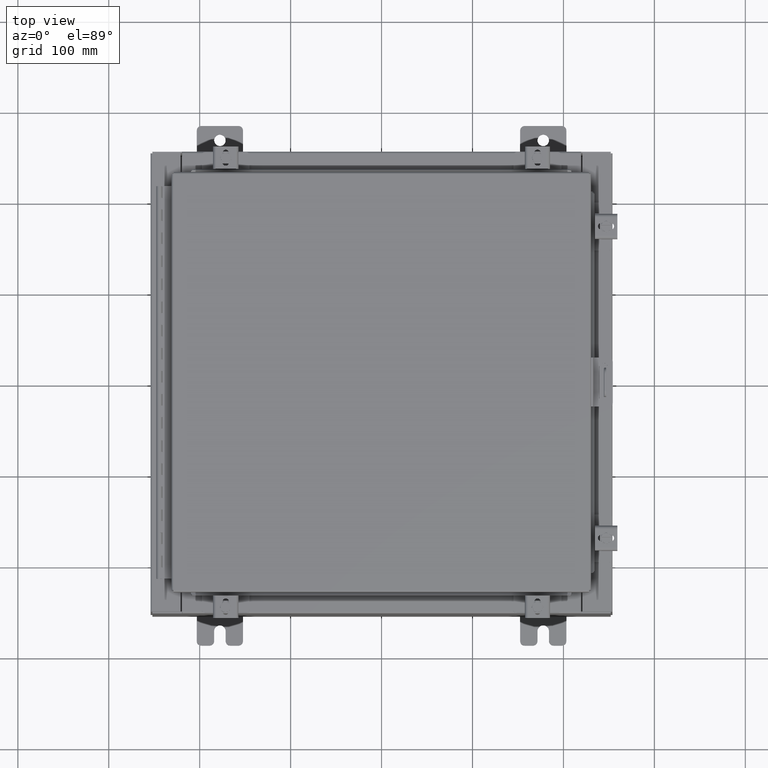
[diagram: clean part render]
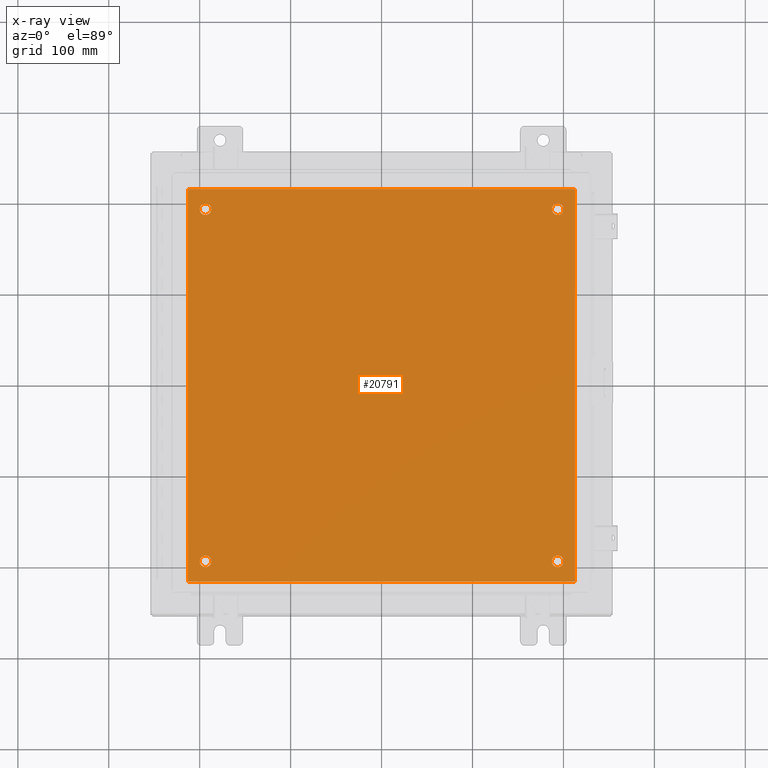
[diagram: x-ray — body ghosted, one internal face saturated and labeled with its STEP entity id]
A machine part, top view, then the same camera in x-ray: the body is ghosted and one INTERNAL B-rep face — a face not visible from any outside direction — is saturated and labeled: STEP entity #20791.
In plain terms, the highlighted planar face has unit normal (0, 0, -1).
Its self-contained STEP definition (entity closure, byte-faithful):
#119 = DIRECTION ( 'NONE',  ( -0.0000000000000000000, -0.0000000000000000000, 1.000000000000000000 ) ) ;
#193 = EDGE_CURVE ( 'NONE', #20568, #8014, #27092, .T. ) ;
#464 = EDGE_CURVE ( 'NONE', #7230, #7078, #10050, .T. ) ;
#630 = CARTESIAN_POINT ( 'NONE',  ( 8.383000000000000900, -8.499999999999998200, -0.1039999999999999800 ) ) ;
#1023 = ORIENTED_EDGE ( 'NONE', *, *, #16695, .F. ) ;
#1101 = CARTESIAN_POINT ( 'NONE',  ( 8.383000000000000900, -8.499999999999998200, -0.1039999999999998100 ) ) ;
#1144 = FACE_BOUND ( 'NONE', #7761, .T. ) ;
#1558 = CARTESIAN_POINT ( 'NONE',  ( -7.375000000000001800, -7.625000000000000900, -0.1039999999999999800 ) ) ;
#1650 = AXIS2_PLACEMENT_3D ( 'NONE', #16886, #3266, #19206 ) ;
#1822 = ORIENTED_EDGE ( 'NONE', *, *, #23185, .T. ) ;
#2120 = VECTOR ( 'NONE', #12971, 39.37007874015748100 ) ;
#2143 = CARTESIAN_POINT ( 'NONE',  ( 7.375000000000003600, 7.625000000000000900, -0.1039999999999999800 ) ) ;
#2950 = VERTEX_POINT ( 'NONE', #6290 ) ;
#3266 = DIRECTION ( 'NONE',  ( -0.0000000000000000000, -0.0000000000000000000, 1.000000000000000000 ) ) ;
#3299 = EDGE_LOOP ( 'NONE', ( #23025, #7953 ) ) ;
#3464 = LINE ( 'NONE', #15397, #8816 ) ;
#3525 = CIRCLE ( 'NONE', #10352, 0.2499999999999998100 ) ;
#4375 = DIRECTION ( 'NONE',  ( -0.0000000000000000000, -0.0000000000000000000, 1.000000000000000000 ) ) ;
#4644 = VERTEX_POINT ( 'NONE', #12057 ) ;
#4817 = CIRCLE ( 'NONE', #1650, 0.2499999999999998100 ) ;
#5528 = CIRCLE ( 'NONE', #29311, 0.2499999999999998100 ) ;
#5798 = FACE_BOUND ( 'NONE', #26513, .T. ) ;
#6290 = CARTESIAN_POINT ( 'NONE',  ( -8.382999999999999100, -8.499999999999998200, -0.1039999999999998100 ) ) ;
#6351 = CARTESIAN_POINT ( 'NONE',  ( -8.382999999999999100, 8.500000000000000000, -0.1039999999999998100 ) ) ;
#7066 = EDGE_CURVE ( 'NONE', #4644, #22737, #4817, .T. ) ;
#7078 = VERTEX_POINT ( 'NONE', #21471 ) ;
#7230 = VERTEX_POINT ( 'NONE', #1558 ) ;
#7517 = CARTESIAN_POINT ( 'NONE',  ( 7.875000000000000900, 7.625000000000000900, -0.1039999999999999800 ) ) ;
#7719 = VERTEX_POINT ( 'NONE', #6351 ) ;
#7761 = EDGE_LOOP ( 'NONE', ( #25584, #1822 ) ) ;
#7931 = DIRECTION ( 'NONE',  ( -0.0000000000000000000, -0.0000000000000000000, 1.000000000000000000 ) ) ;
#7953 = ORIENTED_EDGE ( 'NONE', *, *, #10026, .T. ) ;
#8014 = VERTEX_POINT ( 'NONE', #9719 ) ;
#8042 = AXIS2_PLACEMENT_3D ( 'NONE', #8465, #24363, #10742 ) ;
#8265 = EDGE_CURVE ( 'NONE', #2950, #20568, #19351, .T. ) ;
#8284 = DIRECTION ( 'NONE',  ( -1.000000000000000000, 0.0000000000000000000, -0.0000000000000000000 ) ) ;
#8295 = DIRECTION ( 'NONE',  ( 1.000000000000000000, 0.0000000000000000000, 0.0000000000000000000 ) ) ;
#8465 = CARTESIAN_POINT ( 'NONE',  ( 7.625000000000001800, 7.625000000000000900, -0.1039999999999999800 ) ) ;
#8816 = VECTOR ( 'NONE', #12988, 39.37007874015748100 ) ;
#8941 = EDGE_CURVE ( 'NONE', #20598, #16825, #21074, .T. ) ;
#8984 = EDGE_LOOP ( 'NONE', ( #14703, #21207 ) ) ;
#9465 = ORIENTED_EDGE ( 'NONE', *, *, #8265, .F. ) ;
#9645 = ORIENTED_EDGE ( 'NONE', *, *, #23393, .T. ) ;
#9652 = CARTESIAN_POINT ( 'NONE',  ( -7.625000000000001800, 7.625000000000000900, -0.1039999999999999800 ) ) ;
#9719 = CARTESIAN_POINT ( 'NONE',  ( 8.383000000000000900, 8.500000000000000000, -0.1039999999999999800 ) ) ;
#10026 = EDGE_CURVE ( 'NONE', #7078, #7230, #3525, .T. ) ;
#10050 = CIRCLE ( 'NONE', #21917, 0.2499999999999998100 ) ;
#10305 = CARTESIAN_POINT ( 'NONE',  ( -7.625000000000001800, -7.625000000000000900, -0.1039999999999999800 ) ) ;
#10352 = AXIS2_PLACEMENT_3D ( 'NONE', #10305, #26169, #12583 ) ;
#10383 = VERTEX_POINT ( 'NONE', #29338 ) ;
#10466 = DIRECTION ( 'NONE',  ( -0.0000000000000000000, -0.0000000000000000000, 1.000000000000000000 ) ) ;
#10685 = CARTESIAN_POINT ( 'NONE',  ( -8.500000000000000000, 8.500000000000000000, -0.1039999999999999800 ) ) ;
#10737 = AXIS2_PLACEMENT_3D ( 'NONE', #24083, #10466, #26341 ) ;
#10742 = DIRECTION ( 'NONE',  ( -1.000000000000000000, 0.0000000000000000000, 0.0000000000000000000 ) ) ;
#10973 = EDGE_CURVE ( 'NONE', #7719, #2950, #3464, .T. ) ;
#11922 = DIRECTION ( 'NONE',  ( -1.000000000000000000, 0.0000000000000000000, 0.0000000000000000000 ) ) ;
#12057 = CARTESIAN_POINT ( 'NONE',  ( -7.875000000000001800, 7.625000000000000900, -0.1039999999999999800 ) ) ;
#12583 = DIRECTION ( 'NONE',  ( -1.000000000000000000, 0.0000000000000000000, 0.0000000000000000000 ) ) ;
#12782 = CIRCLE ( 'NONE', #10737, 0.2499999999999987000 ) ;
#12971 = DIRECTION ( 'NONE',  ( -1.000000000000000000, -0.0000000000000000000, -0.0000000000000000000 ) ) ;
#12988 = DIRECTION ( 'NONE',  ( 0.0000000000000000000, -1.000000000000000000, 0.0000000000000000000 ) ) ;
#13766 = CARTESIAN_POINT ( 'NONE',  ( 7.625000000000001800, 7.625000000000000900, -0.1039999999999999800 ) ) ;
#14060 = CIRCLE ( 'NONE', #21128, 0.2499999999999987000 ) ;
#14637 = CARTESIAN_POINT ( 'NONE',  ( 7.375000000000003600, -7.625000000000000900, -0.1039999999999999800 ) ) ;
#14703 = ORIENTED_EDGE ( 'NONE', *, *, #26711, .T. ) ;
#14938 = LINE ( 'NONE', #10685, #2120 ) ;
#15052 = VECTOR ( 'NONE', #26042, 39.37007874015748100 ) ;
#15397 = CARTESIAN_POINT ( 'NONE',  ( -8.382999999999999100, 8.500000000000000000, -0.1039999999999998100 ) ) ;
#16008 = ORIENTED_EDGE ( 'NONE', *, *, #193, .F. ) ;
#16067 = DIRECTION ( 'NONE',  ( -1.000000000000000000, 0.0000000000000000000, 0.0000000000000000000 ) ) ;
#16695 = EDGE_CURVE ( 'NONE', #8014, #7719, #14938, .T. ) ;
#16825 = VERTEX_POINT ( 'NONE', #2143 ) ;
#16886 = CARTESIAN_POINT ( 'NONE',  ( -7.625000000000001800, 7.625000000000000900, -0.1039999999999999800 ) ) ;
#17349 = PLANE ( 'NONE',  #27295 ) ;
#17887 = FACE_BOUND ( 'NONE', #3299, .T. ) ;
#17889 = ORIENTED_EDGE ( 'NONE', *, *, #26872, .T. ) ;
#18013 = CARTESIAN_POINT ( 'NONE',  ( -7.625000000000001800, -7.625000000000000900, -0.1039999999999999800 ) ) ;
#18632 = VECTOR ( 'NONE', #8295, 39.37007874015748100 ) ;
#19206 = DIRECTION ( 'NONE',  ( -1.000000000000000000, 0.0000000000000000000, 0.0000000000000000000 ) ) ;
#19351 = LINE ( 'NONE', #21922, #18632 ) ;
#19601 = VERTEX_POINT ( 'NONE', #14637 ) ;
#19651 = CARTESIAN_POINT ( 'NONE',  ( 0.0000000000000000000, 0.0000000000000000000, -0.1039999999999999800 ) ) ;
#20197 = EDGE_LOOP ( 'NONE', ( #9465, #24463, #1023, #16008 ) ) ;
#20331 = DIRECTION ( 'NONE',  ( -1.000000000000000000, 0.0000000000000000000, 0.0000000000000000000 ) ) ;
#20568 = VERTEX_POINT ( 'NONE', #630 ) ;
#20598 = VERTEX_POINT ( 'NONE', #7517 ) ;
#20791 = ADVANCED_FACE ( 'NONE', ( #17887, #5798, #1144, #29277, #23228 ), #17349, .T. ) ;
#21074 = CIRCLE ( 'NONE', #8042, 0.2499999999999987000 ) ;
#21128 = AXIS2_PLACEMENT_3D ( 'NONE', #21557, #7931, #23836 ) ;
#21207 = ORIENTED_EDGE ( 'NONE', *, *, #7066, .T. ) ;
#21471 = CARTESIAN_POINT ( 'NONE',  ( -7.875000000000001800, -7.625000000000000900, -0.1039999999999999800 ) ) ;
#21557 = CARTESIAN_POINT ( 'NONE',  ( 7.625000000000001800, -7.625000000000000900, -0.1039999999999999800 ) ) ;
#21917 = AXIS2_PLACEMENT_3D ( 'NONE', #18013, #4375, #20331 ) ;
#21918 = DIRECTION ( 'NONE',  ( 0.0000000000000000000, 0.0000000000000000000, -1.000000000000000000 ) ) ;
#21922 = CARTESIAN_POINT ( 'NONE',  ( -8.500000000000000000, -8.499999999999998200, -0.1039999999999999800 ) ) ;
#22737 = VERTEX_POINT ( 'NONE', #25508 ) ;
#23025 = ORIENTED_EDGE ( 'NONE', *, *, #464, .T. ) ;
#23185 = EDGE_CURVE ( 'NONE', #16825, #20598, #24535, .T. ) ;
#23228 = FACE_OUTER_BOUND ( 'NONE', #20197, .T. ) ;
#23393 = EDGE_CURVE ( 'NONE', #19601, #10383, #12782, .T. ) ;
#23493 = AXIS2_PLACEMENT_3D ( 'NONE', #13766, #119, #16067 ) ;
#23836 = DIRECTION ( 'NONE',  ( -1.000000000000000000, 0.0000000000000000000, 0.0000000000000000000 ) ) ;
#24083 = CARTESIAN_POINT ( 'NONE',  ( 7.625000000000001800, -7.625000000000000900, -0.1039999999999999800 ) ) ;
#24363 = DIRECTION ( 'NONE',  ( -0.0000000000000000000, -0.0000000000000000000, 1.000000000000000000 ) ) ;
#24463 = ORIENTED_EDGE ( 'NONE', *, *, #10973, .F. ) ;
#24535 = CIRCLE ( 'NONE', #23493, 0.2499999999999987000 ) ;
#25508 = CARTESIAN_POINT ( 'NONE',  ( -7.375000000000001800, 7.625000000000000900, -0.1039999999999999800 ) ) ;
#25528 = DIRECTION ( 'NONE',  ( -0.0000000000000000000, -0.0000000000000000000, 1.000000000000000000 ) ) ;
#25584 = ORIENTED_EDGE ( 'NONE', *, *, #8941, .T. ) ;
#26042 = DIRECTION ( 'NONE',  ( 0.0000000000000000000, 1.000000000000000000, 0.0000000000000000000 ) ) ;
#26169 = DIRECTION ( 'NONE',  ( -0.0000000000000000000, -0.0000000000000000000, 1.000000000000000000 ) ) ;
#26341 = DIRECTION ( 'NONE',  ( -1.000000000000000000, 0.0000000000000000000, 0.0000000000000000000 ) ) ;
#26513 = EDGE_LOOP ( 'NONE', ( #17889, #9645 ) ) ;
#26711 = EDGE_CURVE ( 'NONE', #22737, #4644, #5528, .T. ) ;
#26872 = EDGE_CURVE ( 'NONE', #10383, #19601, #14060, .T. ) ;
#27092 = LINE ( 'NONE', #1101, #15052 ) ;
#27295 = AXIS2_PLACEMENT_3D ( 'NONE', #19651, #21918, #8284 ) ;
#29277 = FACE_BOUND ( 'NONE', #8984, .T. ) ;
#29311 = AXIS2_PLACEMENT_3D ( 'NONE', #9652, #25528, #11922 ) ;
#29338 = CARTESIAN_POINT ( 'NONE',  ( 7.875000000000000900, -7.625000000000000900, -0.1039999999999999800 ) ) ;